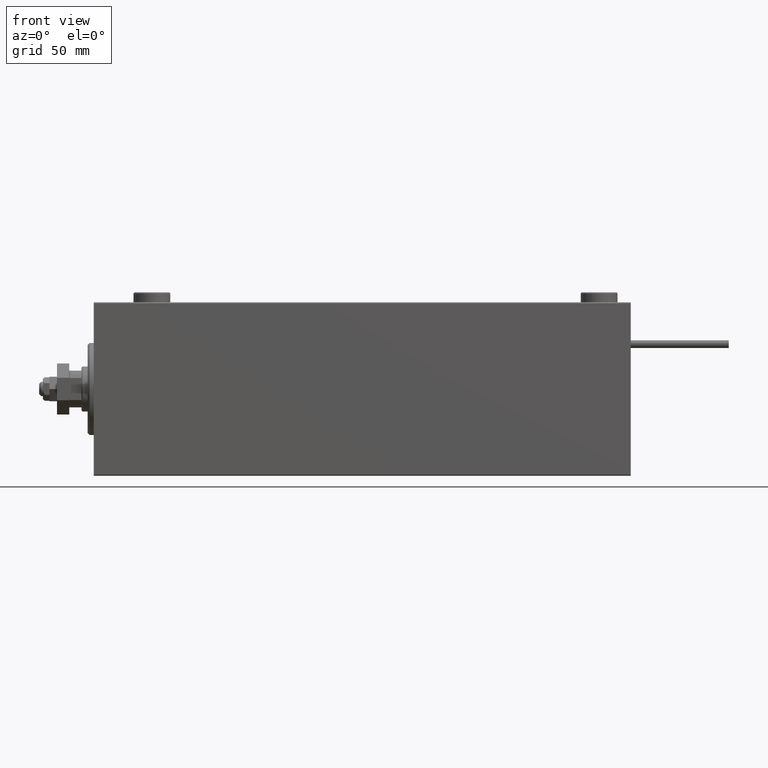
[diagram: clean part render]
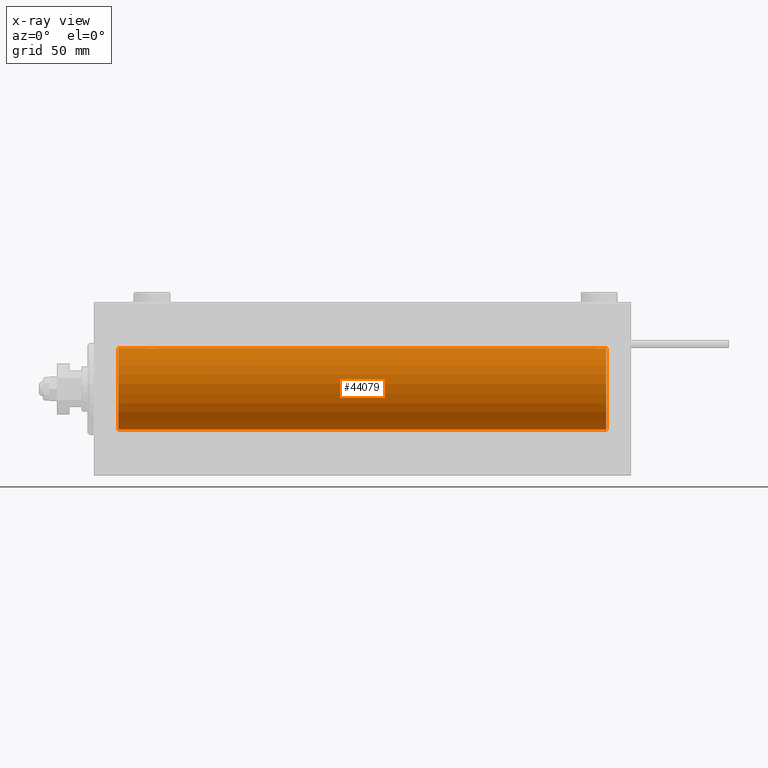
[diagram: x-ray — body ghosted, one internal face saturated and labeled with its STEP entity id]
A machine part, front view, then the same camera in x-ray: the body is ghosted and one INTERNAL B-rep face — a face not visible from any outside direction — is saturated and labeled: STEP entity #44079.
In plain terms, the highlighted cylindrical surface (partial cylindrical patch) has radius 20 mm, axis along (-1, -0, -0).
Its self-contained STEP definition (entity closure, byte-faithful):
#104 = CARTESIAN_POINT ( 'NONE',  ( 248.0192351213527786, -1.935816449315146626, -19.90611141657401362 ) ) ;
#212 = CARTESIAN_POINT ( 'NONE',  ( 247.7607725603156439, -1.987205673487804747, 19.90104673894209952 ) ) ;
#369 = CARTESIAN_POINT ( 'NONE',  ( 26.50000000000000355, -1.552675476701256486E-23, 20.00000000000000000 ) ) ;
#370 = CARTESIAN_POINT ( 'NONE',  ( 245.5000000000000284, -0.2644051013331287225, -20.00000000000000000 ) ) ;
#479 = CARTESIAN_POINT ( 'NONE',  ( 246.1769333108052820, -1.505486175075775979, 19.94347168299867690 ) ) ;
#1283 = VERTEX_POINT ( 'NONE', #40460 ) ;
#2036 = CARTESIAN_POINT ( 'NONE',  ( 30.50000000000000000, 2.449293582768389958E-15, -20.00000000000000000 ) ) ;
#3008 = ORIENTED_EDGE ( 'NONE', *, *, #26924, .T. ) ;
#3129 = DIRECTION ( 'NONE',  ( -1.000000000000000000, -0.000000000000000000, -0.000000000000000000 ) ) ;
#3260 = B_SPLINE_CURVE_WITH_KNOTS ( 'NONE', 3,
 ( #7399, #51534, #34767, #22823, #51016, #31572, #39295, #27330, #27594, #43295, #23605, #51276, #43819, #34511, #22562, #30781, #15100, #50759, #31043, #39029, #19101, #31309, #51795, #15359, #18838, #39820 ),
 .UNSPECIFIED., .F., .F.,
 ( 4, 2, 2, 2, 2, 2, 2, 2, 2, 2, 2, 2, 4 ),
 ( 0.006256819553329746875, 0.007038738568778710007, 0.007820657584227673140, 0.008211617091952151670, 0.008602576599676628466, 0.008993536107401105262, 0.009384495615125583792, 0.009775455122850062323, 0.01016641463057453912, 0.01055737413829901591, 0.01094833364602349271, 0.01173025266147244804, 0.01251217167692140336 ),
 .UNSPECIFIED. ) ;
#3292 = CARTESIAN_POINT ( 'NONE',  ( 30.50000000000000000, 2.449293582768389958E-15, -20.00000000000000000 ) ) ;
#3349 = VERTEX_POINT ( 'NONE', #48071 ) ;
#3551 = CARTESIAN_POINT ( 'NONE',  ( 29.72028945794465571, -1.589957321664208223, -19.93683391378736047 ) ) ;
#3831 = CARTESIAN_POINT ( 'NONE',  ( 245.7531302369692980, -1.008108445278719900, -19.97602680192585822 ) ) ;
#3939 = CARTESIAN_POINT ( 'NONE',  ( 249.4467948419180061, -0.5270924491156545599, 19.99450181871975829 ) ) ;
#4068 = CARTESIAN_POINT ( 'NONE',  ( 30.44755062882508412, -0.5243189001514996228, -19.99457699142849876 ) ) ;
#4089 = CARTESIAN_POINT ( 'NONE',  ( 248.5030655633960350, -1.735203193119904341, -19.92471783160911158 ) ) ;
#4195 = CARTESIAN_POINT ( 'NONE',  ( 246.8536932607535732, -1.897222639860593363, 19.90987429971496780 ) ) ;
#4350 = CARTESIAN_POINT ( 'NONE',  ( 249.2482591346001755, -1.005710574260850532, -19.97614991974274190 ) ) ;
#4618 = CARTESIAN_POINT ( 'NONE',  ( 246.6142092332927120, -1.797933656607944908, -19.91908554465557302 ) ) ;
#5381 = EDGE_CURVE ( 'NONE', #40047, #27005, #3260, .T. ) ;
#5412 = DIRECTION ( 'NONE',  ( 0.000000000000000000, 0.000000000000000000, 1.000000000000000000 ) ) ;
#5754 = CARTESIAN_POINT ( 'NONE',  ( 251.0000000000000000, 0.000000000000000000, 20.00000000000000000 ) ) ;
#7270 = CARTESIAN_POINT ( 'NONE',  ( 28.76358144091416236, -1.986835489085814199, -19.90108393514801222 ) ) ;
#7399 = CARTESIAN_POINT ( 'NONE',  ( 26.50000000000000355, -1.552675476701256486E-23, 20.00000000000000000 ) ) ;
#7408 = B_SPLINE_CURVE_WITH_KNOTS ( 'NONE', 3,
 ( #3292, #15489, #4068, #40220, #24519, #12295, #3551, #20015, #19489, #35684, #31703, #7270, #16269, #11513, #23477, #27724, #43956, #39694, #48193, #7792, #7531, #23734, #11254, #32220, #40480, #47673 ),
 .UNSPECIFIED., .F., .F.,
 ( 4, 2, 2, 2, 2, 2, 2, 2, 2, 2, 2, 2, 4 ),
 ( 0.006256819553329842284, 0.007038738568778818427, 0.007820657584227792836, 0.008211617091952278305, 0.008602576599676762040, 0.008993536107401245774, 0.009384495615125729509, 0.009775455122850213244, 0.01016641463057469871, 0.01055737413829918071, 0.01094833364602366618, 0.01173025266147263365, 0.01251217167692159939 ),
 .UNSPECIFIED. ) ;
#7531 = CARTESIAN_POINT ( 'NONE',  ( 27.17903093152710525, -1.507328959728492457, -19.94333197382385592 ) ) ;
#7553 = CARTESIAN_POINT ( 'NONE',  ( 248.1463067392464552, -1.897222639860616233, -19.90987429971496070 ) ) ;
#7792 = CARTESIAN_POINT ( 'NONE',  ( 27.28194580527848601, -1.591668229360197140, -19.93669678979812332 ) ) ;
#7810 = CARTESIAN_POINT ( 'NONE',  ( 249.0994152488403870, -1.228758402364237279, -19.96307487248085266 ) ) ;
#7921 = CARTESIAN_POINT ( 'NONE',  ( 245.9005847511597267, -1.228758402364239499, 19.96307487248084556 ) ) ;
#8073 = CARTESIAN_POINT ( 'NONE',  ( 247.7635814409141517, -1.986835489085835738, -19.90108393514801577 ) ) ;
#8336 = CARTESIAN_POINT ( 'NONE',  ( 249.4999999999999716, -0.2610801504281894947, -19.99999999999999645 ) ) ;
#8795 = VECTOR ( 'NONE', #3129, 1000.000000000000000 ) ;
#8829 = VECTOR ( 'NONE', #25153, 1000.000000000000000 ) ;
#9518 = DIRECTION ( 'NONE',  ( -1.000000000000000000, -0.000000000000000000, -0.000000000000000000 ) ) ;
#9646 = EDGE_CURVE ( 'NONE', #40483, #44684, #26444, .T. ) ;
#9844 = DIRECTION ( 'NONE',  ( -1.000000000000000000, 0.000000000000000000, 0.000000000000000000 ) ) ;
#9951 = VERTEX_POINT ( 'NONE', #14733 ) ;
#10815 = CARTESIAN_POINT ( 'NONE',  ( 248.3882943720709022, -1.796691196322336870, -19.91919800395357143 ) ) ;
#11246 = CARTESIAN_POINT ( 'NONE',  ( 251.0000000000000000, 2.449293598294706513E-15, -20.00000000000000000 ) ) ;
#11254 = CARTESIAN_POINT ( 'NONE',  ( 26.75313023696928738, -1.008108445278687704, -19.97602680192586533 ) ) ;
#11513 = CARTESIAN_POINT ( 'NONE',  ( 28.36941128289166159, -2.000100592782553921, -19.89973863218036598 ) ) ;
#11580 = ORIENTED_EDGE ( 'NONE', *, *, #17961, .F. ) ;
#11647 = CARTESIAN_POINT ( 'NONE',  ( 248.8209690684728628, -1.507328959728491347, 19.94333197382385592 ) ) ;
#12295 = CARTESIAN_POINT ( 'NONE',  ( 29.82306668919470383, -1.505486175075772870, -19.94347168299867334 ) ) ;
#12315 = CARTESIAN_POINT ( 'NONE',  ( 247.2392274396843277, -1.987205673487832502, -19.90104673894210308 ) ) ;
#14733 = CARTESIAN_POINT ( 'NONE',  ( 249.5000000000000000, 6.344962748519499734E-15, 20.00000000000000000 ) ) ;
#14737 = AXIS2_PLACEMENT_3D ( 'NONE', #49520, #20826, #5412 ) ;
#15100 = CARTESIAN_POINT ( 'NONE',  ( 29.14348528733041377, -1.898187925611342086, 19.90978194174746818 ) ) ;
#15258 = ORIENTED_EDGE ( 'NONE', *, *, #33804, .T. ) ;
#15331 = LINE ( 'NONE', #43793, #8795 ) ;
#15359 = CARTESIAN_POINT ( 'NONE',  ( 30.44679484191797769, -0.5270924491156789848, 19.99450181871975829 ) ) ;
#15489 = CARTESIAN_POINT ( 'NONE',  ( 30.49999999999999645, -0.2610801504281900498, -19.99999999999999645 ) ) ;
#15625 = CARTESIAN_POINT ( 'NONE',  ( 248.1434852873303782, -1.898187925611334093, 19.90978194174746463 ) ) ;
#15731 = B_SPLINE_CURVE_WITH_KNOTS ( 'NONE', 3,
 ( #16398, #20407, #35816, #36603, #7921, #479, #23871, #39825, #32091, #4195, #44341, #52326, #52061, #20667, #212, #48584, #15625, #16668, #32608, #40349, #11647, #36340, #28373, #3939, #48323, #36082 ),
 .UNSPECIFIED., .F., .F.,
 ( 4, 2, 2, 2, 2, 2, 2, 2, 2, 2, 2, 2, 4 ),
 ( 0.006256819553329837080, 0.007038738568778794141, 0.007820657584227751202, 0.008211617091952229733, 0.008602576599676708263, 0.008993536107401185059, 0.009384495615125663590, 0.009775455122850142120, 0.01016641463057462239, 0.01055737413829909918, 0.01094833364602357945, 0.01173025266147259202, 0.01251217167692160633 ),
 .UNSPECIFIED. ) ;
#16117 = ORIENTED_EDGE ( 'NONE', *, *, #9646, .T. ) ;
#16215 = AXIS2_PLACEMENT_3D ( 'NONE', #26311, #9844, #47305 ) ;
#16269 = CARTESIAN_POINT ( 'NONE',  ( 28.63365196142448355, -1.999898234284062992, -19.89975896996866211 ) ) ;
#16398 = CARTESIAN_POINT ( 'NONE',  ( 245.5000000000000000, -1.553188236289650144E-23, 20.00000000000000000 ) ) ;
#16555 = CARTESIAN_POINT ( 'NONE',  ( 245.5000000000000000, -2.194759453252805910E-14, -20.00000000000000000 ) ) ;
#16609 = LINE ( 'NONE', #37590, #44206 ) ;
#16631 = CARTESIAN_POINT ( 'NONE',  ( 251.0000000000000000, 0.000000000000000000, 20.00000000000000000 ) ) ;
#16668 = CARTESIAN_POINT ( 'NONE',  ( 248.3857907667072595, -1.797933656607912489, 19.91908554465557657 ) ) ;
#17961 = EDGE_CURVE ( 'NONE', #19272, #27005, #15331, .T. ) ;
#18441 = EDGE_CURVE ( 'NONE', #34800, #9951, #42176, .T. ) ;
#18838 = CARTESIAN_POINT ( 'NONE',  ( 30.49999999999994671, -0.2644051013330911970, 19.99999999999999645 ) ) ;
#19101 = CARTESIAN_POINT ( 'NONE',  ( 29.82096906847290541, -1.507328959728497564, 19.94333197382386302 ) ) ;
#19143 = DIRECTION ( 'NONE',  ( -1.000000000000000000, 0.000000000000000000, 0.000000000000000000 ) ) ;
#19272 = VERTEX_POINT ( 'NONE', #40860 ) ;
#19489 = CARTESIAN_POINT ( 'NONE',  ( 29.38829437207091999, -1.796691196322316664, -19.91919800395357143 ) ) ;
#20015 = CARTESIAN_POINT ( 'NONE',  ( 29.50306556339602437, -1.735203193119894349, -19.92471783160910803 ) ) ;
#20296 = CARTESIAN_POINT ( 'NONE',  ( 246.4993278086076316, -1.736582545981399939, -19.92459705242980306 ) ) ;
#20407 = CARTESIAN_POINT ( 'NONE',  ( 245.4999999999999716, -0.2610801504281912711, 19.99999999999999645 ) ) ;
#20556 = CARTESIAN_POINT ( 'NONE',  ( 246.1790309315271088, -1.507328959728516438, -19.94333197382385592 ) ) ;
#20667 = CARTESIAN_POINT ( 'NONE',  ( 247.6305887171083668, -2.000100592782551701, 19.89973863218036598 ) ) ;
#20826 = DIRECTION ( 'NONE',  ( -1.000000000000000000, -0.000000000000000000, -0.000000000000000000 ) ) ;
#21400 = EDGE_CURVE ( 'NONE', #1283, #34800, #25951, .T. ) ;
#22562 = CARTESIAN_POINT ( 'NONE',  ( 28.76077256031567586, -1.987205673487811186, 19.90104673894211018 ) ) ;
#22823 = CARTESIAN_POINT ( 'NONE',  ( 26.75174086539980678, -1.005710574260839874, 19.97614991974273835 ) ) ;
#23380 = EDGE_CURVE ( 'NONE', #27179, #40483, #49643, .T. ) ;
#23477 = CARTESIAN_POINT ( 'NONE',  ( 28.23922743968432059, -1.987205673487808966, -19.90104673894211018 ) ) ;
#23605 = CARTESIAN_POINT ( 'NONE',  ( 27.98076487864722495, -1.935816449315125309, 19.90611141657401717 ) ) ;
#23734 = CARTESIAN_POINT ( 'NONE',  ( 26.90225308445269903, -1.230936344679278260, -19.96293863536309132 ) ) ;
#23871 = CARTESIAN_POINT ( 'NONE',  ( 246.2797105420554260, -1.589957321664211998, 19.93683391378736403 ) ) ;
#24281 = CARTESIAN_POINT ( 'NONE',  ( 247.3694112828916047, -2.000100592782575237, -19.89973863218036243 ) ) ;
#24308 = VECTOR ( 'NONE', #9518, 1000.000000000000000 ) ;
#24337 = B_SPLINE_CURVE_WITH_KNOTS ( 'NONE', 3,
 ( #48738, #8336, #31977, #4350, #7810, #24539, #28003, #4089, #10815, #7553, #104, #8073, #48478, #24281, #12315, #39979, #28523, #4618, #20296, #44746, #20556, #24801, #3831, #36226, #370, #16555 ),
 .UNSPECIFIED., .F., .F.,
 ( 4, 2, 2, 2, 2, 2, 2, 2, 2, 2, 2, 2, 4 ),
 ( 0.006256819553329811927, 0.007038738568778726487, 0.007820657584227641915, 0.008211617091952127384, 0.008602576599676614588, 0.008993536107401101792, 0.009384495615125588996, 0.009775455122850074466, 0.01016641463057456167, 0.01055737413829904714, 0.01094833364602353434, 0.01173025266147256600, 0.01251217167692159765 ),
 .UNSPECIFIED. ) ;
#24514 = ORIENTED_EDGE ( 'NONE', *, *, #43670, .F. ) ;
#24519 = CARTESIAN_POINT ( 'NONE',  ( 30.09941524884030173, -1.228758402364235502, -19.96307487248084911 ) ) ;
#24539 = CARTESIAN_POINT ( 'NONE',  ( 248.8230666891946612, -1.505486175075778199, -19.94347168299867690 ) ) ;
#24801 = CARTESIAN_POINT ( 'NONE',  ( 245.9022530844527239, -1.230936344679302907, -19.96293863536308422 ) ) ;
#25143 = ORIENTED_EDGE ( 'NONE', *, *, #5381, .T. ) ;
#25153 = DIRECTION ( 'NONE',  ( -1.000000000000000000, -0.000000000000000000, -0.000000000000000000 ) ) ;
#25951 = CIRCLE ( 'NONE', #49688, 20.00000000000000000 ) ;
#26054 = CARTESIAN_POINT ( 'NONE',  ( 12.00000000000001066, 2.449293598294706513E-15, -20.00000000000000000 ) ) ;
#26311 = CARTESIAN_POINT ( 'NONE',  ( 12.00000000000001066, 0.000000000000000000, 0.000000000000000000 ) ) ;
#26444 = CIRCLE ( 'NONE', #16215, 20.00000000000000000 ) ;
#26924 = EDGE_CURVE ( 'NONE', #33411, #42220, #43425, .T. ) ;
#27005 = VERTEX_POINT ( 'NONE', #51137 ) ;
#27104 = DIRECTION ( 'NONE',  ( 0.000000000000000000, 0.000000000000000000, 1.000000000000000000 ) ) ;
#27179 = VERTEX_POINT ( 'NONE', #44466 ) ;
#27330 = CARTESIAN_POINT ( 'NONE',  ( 27.49693443660397563, -1.735203193119895015, 19.92471783160911158 ) ) ;
#27594 = CARTESIAN_POINT ( 'NONE',  ( 27.61170562792909422, -1.796691196322318218, 19.91919800395357498 ) ) ;
#27724 = CARTESIAN_POINT ( 'NONE',  ( 27.98351467081095123, -1.936551476643005198, -19.90603968831098314 ) ) ;
#28003 = CARTESIAN_POINT ( 'NONE',  ( 248.7202894579446593, -1.589957321664215328, -19.93683391378736403 ) ) ;
#28373 = CARTESIAN_POINT ( 'NONE',  ( 249.2468697630306735, -1.008108445278671050, 19.97602680192585822 ) ) ;
#28523 = CARTESIAN_POINT ( 'NONE',  ( 246.8565147126695933, -1.898187925611367399, -19.90978194174746463 ) ) ;
#29052 = CYLINDRICAL_SURFACE ( 'NONE', #14737, 20.00000000000000000 ) ;
#29097 = DIRECTION ( 'NONE',  ( -1.000000000000000000, -0.000000000000000000, -0.000000000000000000 ) ) ;
#30781 = CARTESIAN_POINT ( 'NONE',  ( 29.01648532918904522, -1.936551476643008529, 19.90603968831098314 ) ) ;
#31043 = CARTESIAN_POINT ( 'NONE',  ( 29.50067219139244301, -1.736582545981379511, 19.92459705242981371 ) ) ;
#31309 = CARTESIAN_POINT ( 'NONE',  ( 30.09774691554730808, -1.230936344679284034, 19.96293863536309487 ) ) ;
#31572 = CARTESIAN_POINT ( 'NONE',  ( 27.17693331080529617, -1.505486175075771760, 19.94347168299866979 ) ) ;
#31703 = CARTESIAN_POINT ( 'NONE',  ( 29.01923512135276795, -1.935816449315124643, -19.90611141657401717 ) ) ;
#31977 = CARTESIAN_POINT ( 'NONE',  ( 249.4475506288250983, -0.5243189001515076164, -19.99457699142850586 ) ) ;
#32091 = CARTESIAN_POINT ( 'NONE',  ( 246.6117056279290694, -1.796691196322314443, 19.91919800395357143 ) ) ;
#32220 = CARTESIAN_POINT ( 'NONE',  ( 26.55320515808203297, -0.5270924491156698810, -19.99450181871976184 ) ) ;
#32574 = LINE ( 'NONE', #16631, #38528 ) ;
#32608 = CARTESIAN_POINT ( 'NONE',  ( 248.5006721913923400, -1.736582545981374404, 19.92459705242980306 ) ) ;
#33411 = VERTEX_POINT ( 'NONE', #45382 ) ;
#33804 = EDGE_CURVE ( 'NONE', #1283, #3349, #16609, .T. ) ;
#34511 = CARTESIAN_POINT ( 'NONE',  ( 28.63058871710834907, -2.000100592782554365, 19.89973863218036598 ) ) ;
#34669 = EDGE_CURVE ( 'NONE', #19272, #9951, #15731, .T. ) ;
#34767 = CARTESIAN_POINT ( 'NONE',  ( 26.55244937117491943, -0.5243189001515015102, 19.99457699142850231 ) ) ;
#34800 = VERTEX_POINT ( 'NONE', #38179 ) ;
#35417 = DIRECTION ( 'NONE',  ( -1.000000000000000000, -0.000000000000000000, -0.000000000000000000 ) ) ;
#35684 = CARTESIAN_POINT ( 'NONE',  ( 29.14630673924643744, -1.897222639860594029, -19.90987429971496780 ) ) ;
#35816 = CARTESIAN_POINT ( 'NONE',  ( 245.5524493711749301, -0.5243189001515013992, 19.99457699142850231 ) ) ;
#36082 = CARTESIAN_POINT ( 'NONE',  ( 249.5000000000000000, 6.344962748519499734E-15, 20.00000000000000000 ) ) ;
#36226 = CARTESIAN_POINT ( 'NONE',  ( 245.5532051580820223, -0.5270924491157048530, -19.99450181871975474 ) ) ;
#36340 = CARTESIAN_POINT ( 'NONE',  ( 249.0977469155472477, -1.230936344679278704, 19.96293863536309132 ) ) ;
#36603 = CARTESIAN_POINT ( 'NONE',  ( 245.7517408653997393, -1.005710574260841650, 19.97614991974273835 ) ) ;
#37590 = CARTESIAN_POINT ( 'NONE',  ( 251.0000000000000000, 2.449293598294706513E-15, -20.00000000000000000 ) ) ;
#38179 = CARTESIAN_POINT ( 'NONE',  ( 251.0000000000000000, 0.000000000000000000, 20.00000000000000000 ) ) ;
#38199 = CARTESIAN_POINT ( 'NONE',  ( 251.0000000000000000, 2.449293598294706513E-15, -20.00000000000000000 ) ) ;
#38528 = VECTOR ( 'NONE', #41110, 1000.000000000000000 ) ;
#39029 = CARTESIAN_POINT ( 'NONE',  ( 29.71805419472150689, -1.591668229360200915, 19.93669678979812687 ) ) ;
#39168 = ORIENTED_EDGE ( 'NONE', *, *, #34669, .T. ) ;
#39295 = CARTESIAN_POINT ( 'NONE',  ( 27.27971054205536205, -1.589957321664209333, 19.93683391378736047 ) ) ;
#39694 = CARTESIAN_POINT ( 'NONE',  ( 27.61420923329272981, -1.797933656607917596, -19.91908554465558367 ) ) ;
#39820 = CARTESIAN_POINT ( 'NONE',  ( 30.50000000000000000, -1.291560016220422276E-14, 20.00000000000000000 ) ) ;
#39825 = CARTESIAN_POINT ( 'NONE',  ( 246.4969344366040502, -1.735203193119897236, 19.92471783160911514 ) ) ;
#39979 = CARTESIAN_POINT ( 'NONE',  ( 246.9835146708110187, -1.936551476643029401, -19.90603968831098314 ) ) ;
#40047 = VERTEX_POINT ( 'NONE', #369 ) ;
#40220 = CARTESIAN_POINT ( 'NONE',  ( 30.24825913460018612, -1.005710574260838985, -19.97614991974274190 ) ) ;
#40349 = CARTESIAN_POINT ( 'NONE',  ( 248.7180541947215318, -1.591668229360197806, 19.93669678979812687 ) ) ;
#40460 = CARTESIAN_POINT ( 'NONE',  ( 251.0000000000000000, 2.449293598294706513E-15, -20.00000000000000000 ) ) ;
#40480 = CARTESIAN_POINT ( 'NONE',  ( 26.50000000000001066, -0.2644051013331030209, -20.00000000000000355 ) ) ;
#40483 = VERTEX_POINT ( 'NONE', #26054 ) ;
#40860 = CARTESIAN_POINT ( 'NONE',  ( 245.5000000000000000, -1.553188236289650144E-23, 20.00000000000000000 ) ) ;
#41110 = DIRECTION ( 'NONE',  ( -1.000000000000000000, -0.000000000000000000, -0.000000000000000000 ) ) ;
#41253 = ORIENTED_EDGE ( 'NONE', *, *, #21400, .F. ) ;
#41974 = CARTESIAN_POINT ( 'NONE',  ( 12.00000000000001066, 0.000000000000000000, 20.00000000000000000 ) ) ;
#42176 = LINE ( 'NONE', #5754, #8829 ) ;
#42220 = VERTEX_POINT ( 'NONE', #2036 ) ;
#42507 = ORIENTED_EDGE ( 'NONE', *, *, #46298, .T. ) ;
#43295 = CARTESIAN_POINT ( 'NONE',  ( 27.85369326075355190, -1.897222639860595139, 19.90987429971497136 ) ) ;
#43425 = LINE ( 'NONE', #11246, #45628 ) ;
#43670 = EDGE_CURVE ( 'NONE', #40047, #44684, #32574, .T. ) ;
#43793 = CARTESIAN_POINT ( 'NONE',  ( 251.0000000000000000, 0.000000000000000000, 20.00000000000000000 ) ) ;
#43819 = CARTESIAN_POINT ( 'NONE',  ( 28.36634803857550580, -1.999898234284063436, 19.89975896996865856 ) ) ;
#43956 = CARTESIAN_POINT ( 'NONE',  ( 27.85651471266959334, -1.898187925611338533, -19.90978194174746818 ) ) ;
#44079 = ADVANCED_FACE ( 'NONE', ( #46331 ), #29052, .F. ) ;
#44206 = VECTOR ( 'NONE', #29097, 1000.000000000000000 ) ;
#44341 = CARTESIAN_POINT ( 'NONE',  ( 246.9807648786472782, -1.935816449315131527, 19.90611141657401717 ) ) ;
#44466 = CARTESIAN_POINT ( 'NONE',  ( 26.50000000000000355, -3.809869420541414000E-15, -20.00000000000000000 ) ) ;
#44684 = VERTEX_POINT ( 'NONE', #41974 ) ;
#44746 = CARTESIAN_POINT ( 'NONE',  ( 246.2819458052784967, -1.591668229360221565, -19.93669678979811977 ) ) ;
#45382 = CARTESIAN_POINT ( 'NONE',  ( 245.5000000000000000, -2.194759453252805910E-14, -20.00000000000000000 ) ) ;
#45414 = ORIENTED_EDGE ( 'NONE', *, *, #48143, .T. ) ;
#45628 = VECTOR ( 'NONE', #35417, 1000.000000000000000 ) ;
#46050 = ORIENTED_EDGE ( 'NONE', *, *, #23380, .T. ) ;
#46298 = EDGE_CURVE ( 'NONE', #42220, #27179, #7408, .T. ) ;
#46331 = FACE_OUTER_BOUND ( 'NONE', #51404, .T. ) ;
#47067 = ORIENTED_EDGE ( 'NONE', *, *, #18441, .F. ) ;
#47305 = DIRECTION ( 'NONE',  ( 0.000000000000000000, 0.000000000000000000, 1.000000000000000000 ) ) ;
#47673 = CARTESIAN_POINT ( 'NONE',  ( 26.50000000000000355, -3.809869420541414000E-15, -20.00000000000000000 ) ) ;
#48071 = CARTESIAN_POINT ( 'NONE',  ( 249.5000000000000000, 2.449293582762473501E-15, -20.00000000000000000 ) ) ;
#48143 = EDGE_CURVE ( 'NONE', #3349, #33411, #24337, .T. ) ;
#48193 = CARTESIAN_POINT ( 'NONE',  ( 27.49932780860757475, -1.736582545981376180, -19.92459705242981371 ) ) ;
#48323 = CARTESIAN_POINT ( 'NONE',  ( 249.5000000000000568, -0.2644051013331001898, 20.00000000000000355 ) ) ;
#48478 = CARTESIAN_POINT ( 'NONE',  ( 247.6336519614245333, -1.999898234284084308, -19.89975896996866211 ) ) ;
#48584 = CARTESIAN_POINT ( 'NONE',  ( 248.0164853291890950, -1.936551476642997649, 19.90603968831098669 ) ) ;
#48738 = CARTESIAN_POINT ( 'NONE',  ( 249.5000000000000000, 2.449293582762473501E-15, -20.00000000000000000 ) ) ;
#49520 = CARTESIAN_POINT ( 'NONE',  ( 251.0000000000000000, 0.000000000000000000, 0.000000000000000000 ) ) ;
#49643 = LINE ( 'NONE', #38199, #24308 ) ;
#49688 = AXIS2_PLACEMENT_3D ( 'NONE', #51838, #19143, #27104 ) ;
#50759 = CARTESIAN_POINT ( 'NONE',  ( 29.38579076670728085, -1.797933656607921593, 19.91908554465558367 ) ) ;
#51016 = CARTESIAN_POINT ( 'NONE',  ( 26.90058475115969827, -1.228758402364235058, 19.96307487248084911 ) ) ;
#51137 = CARTESIAN_POINT ( 'NONE',  ( 30.50000000000000000, -1.291560016220422276E-14, 20.00000000000000000 ) ) ;
#51276 = CARTESIAN_POINT ( 'NONE',  ( 28.23641855908583764, -1.986835489085813755, 19.90108393514800866 ) ) ;
#51404 = EDGE_LOOP ( 'NONE', ( #41253, #15258, #45414, #3008, #42507, #46050, #16117, #24514, #25143, #11580, #39168, #47067 ) ) ;
#51534 = CARTESIAN_POINT ( 'NONE',  ( 26.50000000000001421, -0.2610801504281920482, 20.00000000000000000 ) ) ;
#51795 = CARTESIAN_POINT ( 'NONE',  ( 30.24686976303071617, -1.008108445278694365, 19.97602680192586533 ) ) ;
#51838 = CARTESIAN_POINT ( 'NONE',  ( 251.0000000000000000, 0.000000000000000000, 0.000000000000000000 ) ) ;
#52061 = CARTESIAN_POINT ( 'NONE',  ( 247.3663480385754667, -1.999898234284060772, 19.89975896996866211 ) ) ;
#52326 = CARTESIAN_POINT ( 'NONE',  ( 247.2364185590857915, -1.986835489085816198, 19.90108393514801222 ) ) ;